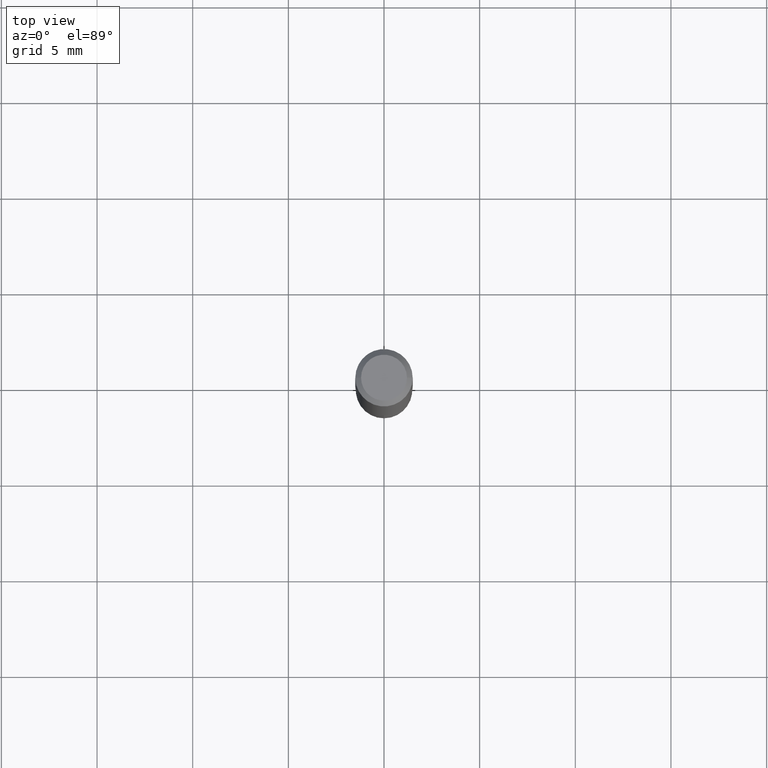
[diagram: clean part render]
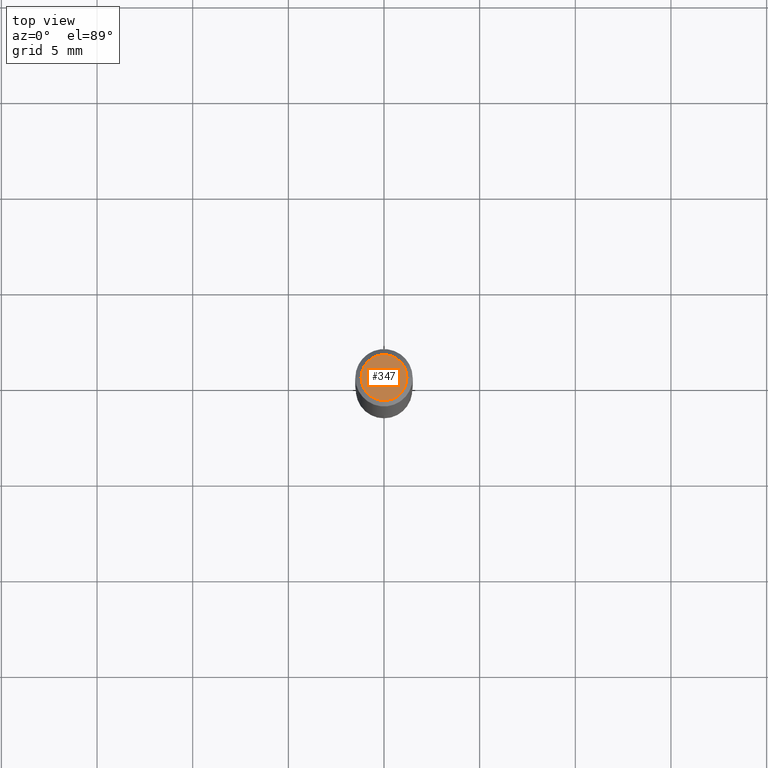
[diagram: same view with one face highlighted and labeled with its STEP entity id]
A machine part, top view. The second image highlights one B-rep face of the part: STEP entity #347.
In plain terms, the highlighted planar face has unit normal (0, -0, -1).
Its self-contained STEP definition (entity closure, byte-faithful):
#7 = CARTESIAN_POINT ( 'NONE',  ( 8.265746106709734507E-48, -1.180129479067563789E-33, -3.380025165646692144E-19 ) ) ;
#34 = CIRCLE ( 'NONE', #345, 0.04724000000000000421 ) ;
#42 = CARTESIAN_POINT ( 'NONE',  ( -0.04724000000000000421, 3.504923541997677355E-16, -3.380025165670481712E-19 ) ) ;
#49 = FACE_OUTER_BOUND ( 'NONE', #369, .T. ) ;
#78 = VERTEX_POINT ( 'NONE', #42 ) ;
#100 = CARTESIAN_POINT ( 'NONE',  ( 0.04724000000000000421, -3.852183633974369345E-16, -3.380025165621689721E-19 ) ) ;
#119 = PLANE ( 'NONE',  #148 ) ;
#122 = DIRECTION ( 'NONE',  ( 1.000000000000000000, -6.982962677686266711E-15, 4.876185090822587894E-29 ) ) ;
#148 = AXIS2_PLACEMENT_3D ( 'NONE', #215, #386, #360 ) ;
#153 = EDGE_CURVE ( 'NONE', #78, #183, #34, .T. ) ;
#165 = DIRECTION ( 'NONE',  ( 1.000000000000000000, -6.982962677686266711E-15, 4.876185090822587894E-29 ) ) ;
#183 = VERTEX_POINT ( 'NONE', #100 ) ;
#201 = CIRCLE ( 'NONE', #264, 0.04724000000000000421 ) ;
#215 = CARTESIAN_POINT ( 'NONE',  ( 4.132873053354867254E-48, -5.900647395337818946E-34, -1.690012582823346072E-19 ) ) ;
#247 = CARTESIAN_POINT ( 'NONE',  ( 8.265746106709734507E-48, -1.180129479067563789E-33, -3.380025165646692144E-19 ) ) ;
#264 = AXIS2_PLACEMENT_3D ( 'NONE', #7, #308, #165 ) ;
#308 = DIRECTION ( 'NONE',  ( -2.445468806185136597E-29, 3.491481338843145583E-15, 1.000000000000000000 ) ) ;
#324 = ORIENTED_EDGE ( 'NONE', *, *, #490, .T. ) ;
#345 = AXIS2_PLACEMENT_3D ( 'NONE', #247, #385, #122 ) ;
#347 = ADVANCED_FACE ( 'NONE', ( #49 ), #119, .F. ) ;
#360 = DIRECTION ( 'NONE',  ( -1.000000000000000000, 6.982962677686265922E-15, -4.876176775795935793E-29 ) ) ;
#369 = EDGE_LOOP ( 'NONE', ( #399, #324 ) ) ;
#385 = DIRECTION ( 'NONE',  ( -2.445468806185136597E-29, 3.491481338843145583E-15, 1.000000000000000000 ) ) ;
#386 = DIRECTION ( 'NONE',  ( 2.438088387897960049E-29, -3.491481338843145188E-15, -1.000000000000000000 ) ) ;
#399 = ORIENTED_EDGE ( 'NONE', *, *, #153, .T. ) ;
#490 = EDGE_CURVE ( 'NONE', #183, #78, #201, .T. ) ;